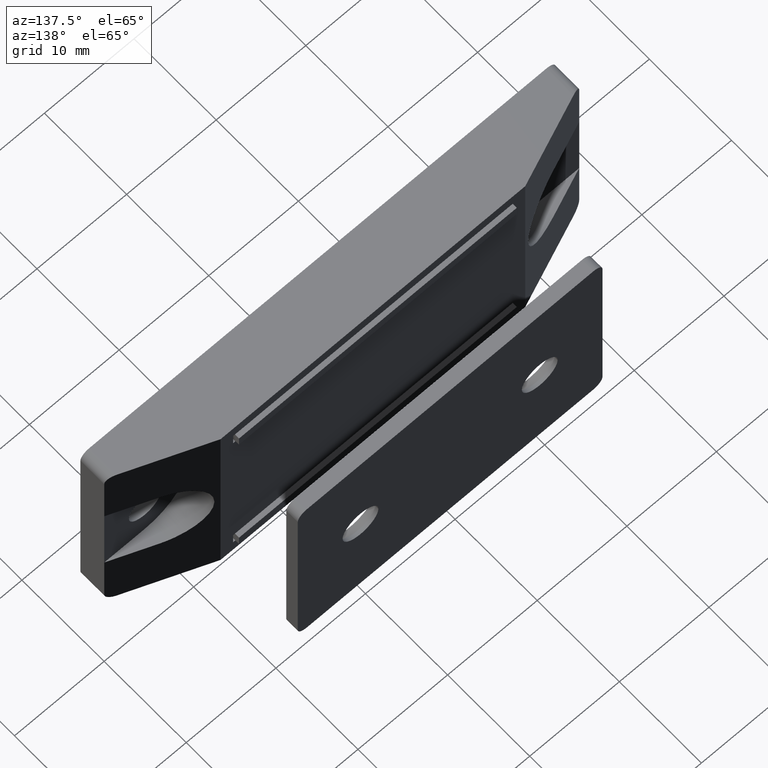
[diagram: clean part render]
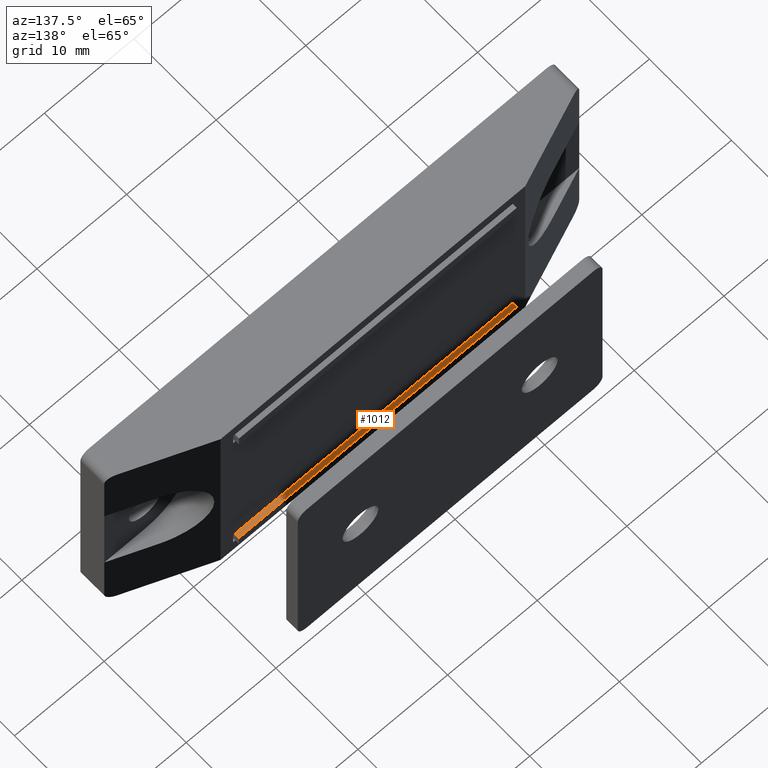
[diagram: same view with one face highlighted and labeled with its STEP entity id]
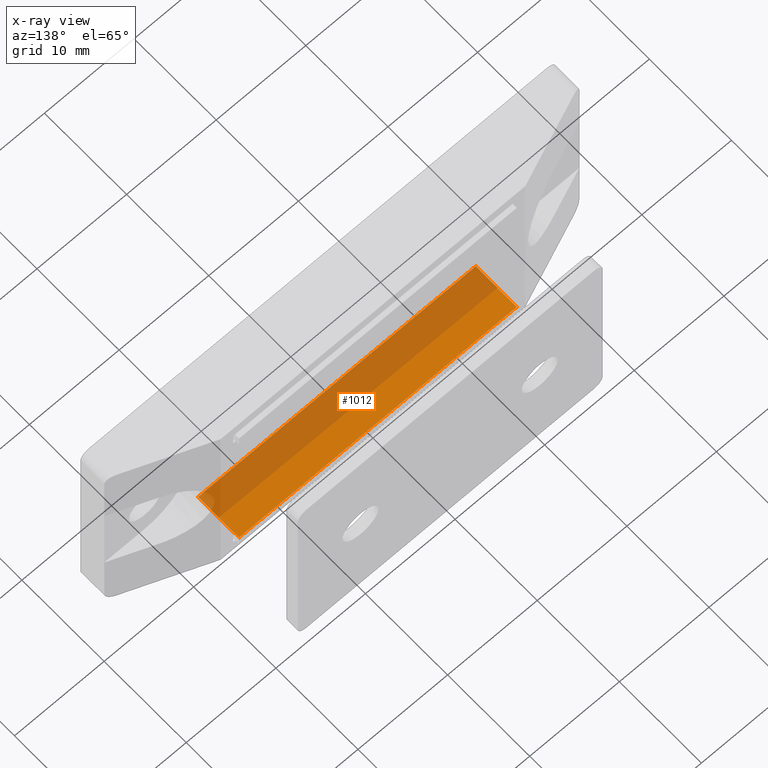
[diagram: x-ray of the same camera — body ghosted, the highlighted face saturated]
A machine part, auxiliary view. The second image highlights one B-rep face of the part: STEP entity #1012.
The next image is the same camera in x-ray: the body ghosted, the highlighted face saturated — about 52% of this face is hidden behind the body in this view.
In plain terms, the highlighted planar face has unit normal (-0, 0, 1).
Its self-contained STEP definition (entity closure, byte-faithful):
#88=PLANE('',#1107);
#146=FACE_OUTER_BOUND('',#220,.T.);
#220=EDGE_LOOP('',(#904,#905,#906,#907));
#316=LINE('',#1649,#418);
#317=LINE('',#1651,#419);
#318=LINE('',#1653,#420);
#319=LINE('',#1654,#421);
#418=VECTOR('',#1361,31.);
#419=VECTOR('',#1362,5.);
#420=VECTOR('',#1363,31.);
#421=VECTOR('',#1364,5.);
#540=VERTEX_POINT('',#1647);
#541=VERTEX_POINT('',#1648);
#542=VERTEX_POINT('',#1650);
#543=VERTEX_POINT('',#1652);
#664=EDGE_CURVE('',#540,#541,#316,.T.);
#665=EDGE_CURVE('',#540,#542,#317,.T.);
#666=EDGE_CURVE('',#543,#542,#318,.T.);
#667=EDGE_CURVE('',#541,#543,#319,.T.);
#904=ORIENTED_EDGE('',*,*,#664,.F.);
#905=ORIENTED_EDGE('',*,*,#665,.T.);
#906=ORIENTED_EDGE('',*,*,#666,.F.);
#907=ORIENTED_EDGE('',*,*,#667,.F.);
#1012=ADVANCED_FACE('',(#146),#88,.T.);
#1107=AXIS2_PLACEMENT_3D('',#1646,#1359,#1360);
#1359=DIRECTION('center_axis',(0.,1.,0.));
#1360=DIRECTION('ref_axis',(1.,0.,0.));
#1361=DIRECTION('',(-1.,0.,0.));
#1362=DIRECTION('',(0.,0.,-1.));
#1363=DIRECTION('',(1.,0.,0.));
#1364=DIRECTION('',(0.,0.,-1.));
#1646=CARTESIAN_POINT('Origin',(-15.5,-9.05,0.6));
#1647=CARTESIAN_POINT('',(15.5,-9.05,0.6));
#1648=CARTESIAN_POINT('',(-15.5,-9.05,0.6));
#1649=CARTESIAN_POINT('',(15.5,-9.05,0.6));
#1650=CARTESIAN_POINT('',(15.5,-9.05,-4.4));
#1651=CARTESIAN_POINT('',(15.5,-9.05,0.6));
#1652=CARTESIAN_POINT('',(-15.5,-9.05,-4.4));
#1653=CARTESIAN_POINT('',(15.5,-9.05,-4.4));
#1654=CARTESIAN_POINT('',(-15.5,-9.05,0.6));